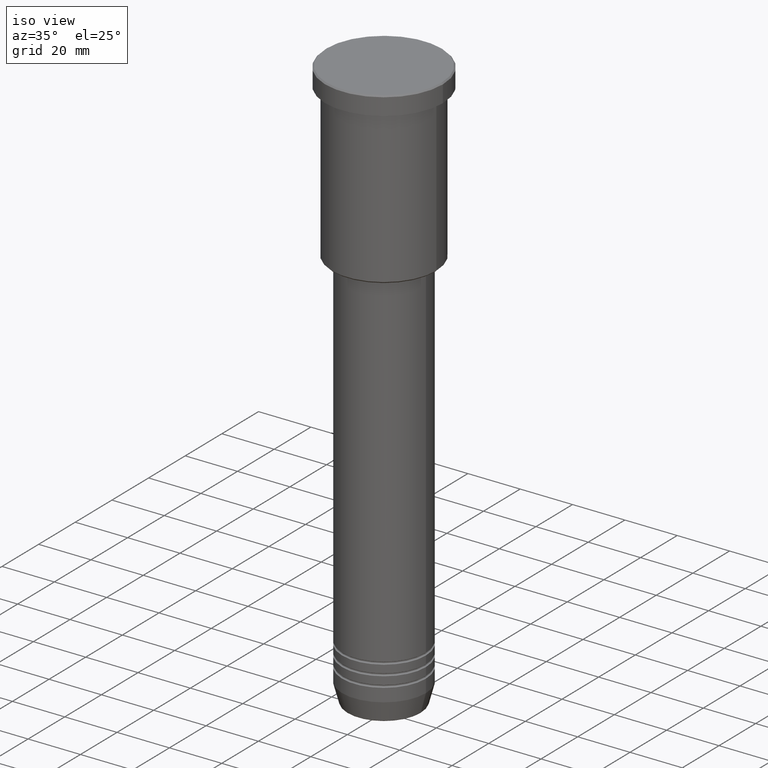
[diagram: clean part render]
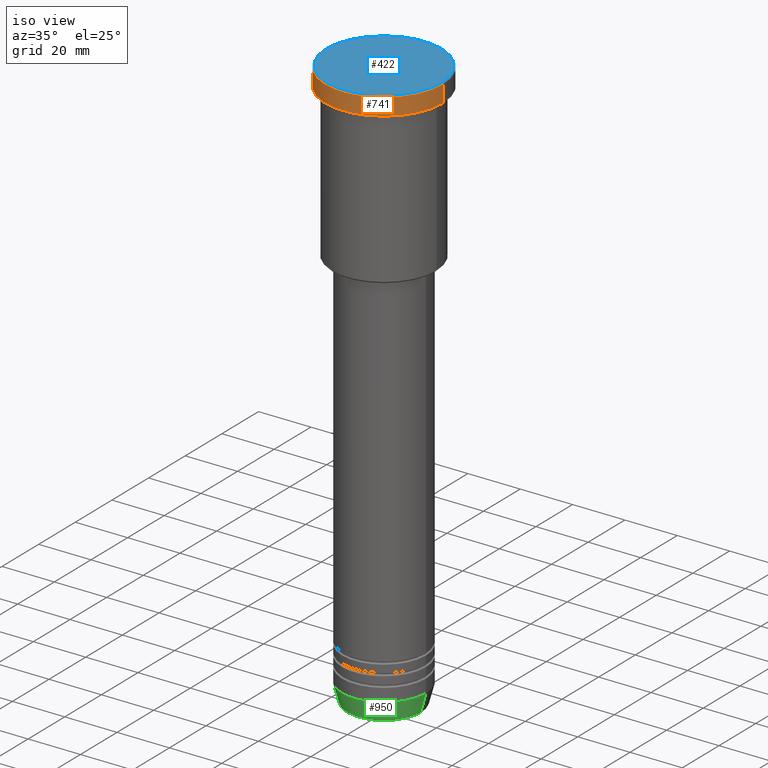
[diagram: same view with three faces highlighted in distinct colors, each labeled with its STEP entity id]
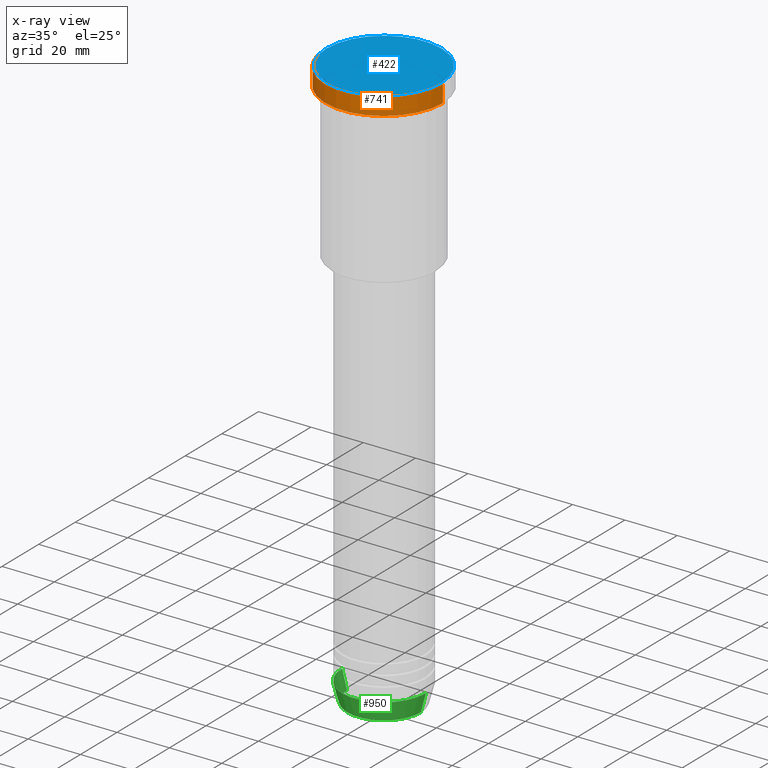
[diagram: x-ray of the same camera — body ghosted, the three highlighted faces saturated]
A machine part, iso view with three faces highlighted in distinct colors.
The next image is the same camera in x-ray (body ghosted, the three faces saturated) — at least one of them is partly hidden behind the body in this view.
Their STEP definitions:

[orange] entity #741 — the highlighted cylindrical surface (partial cylindrical patch) has radius 22.5 mm, axis along (-0, -0, 1).
#32 = VECTOR ( 'NONE', #1113, 1000.000000000000000 ) ;
#57 = CARTESIAN_POINT ( 'NONE',  ( -22.50000000000000000, 2.755455298081544778E-15, -6.999999999999995559 ) ) ;
#110 = AXIS2_PLACEMENT_3D ( 'NONE', #300, #193, #678 ) ;
#150 = EDGE_CURVE ( 'NONE', #1011, #348, #398, .T. ) ;
#152 = CARTESIAN_POINT ( 'NONE',  ( 0.000000000000000000, 0.000000000000000000, -0.5000000000000213163 ) ) ;
#193 = DIRECTION ( 'NONE',  ( -0.000000000000000000, -0.000000000000000000, 1.000000000000000000 ) ) ;
#251 = ORIENTED_EDGE ( 'NONE', *, *, #547, .T. ) ;
#258 = FACE_OUTER_BOUND ( 'NONE', #912, .T. ) ;
#261 = CARTESIAN_POINT ( 'NONE',  ( -22.50000000000000000, 2.755455298081544778E-15, -0.5000000000000213163 ) ) ;
#283 = ORIENTED_EDGE ( 'NONE', *, *, #1158, .T. ) ;
#300 = CARTESIAN_POINT ( 'NONE',  ( 0.000000000000000000, 0.000000000000000000, -6.999999999999995559 ) ) ;
#318 = AXIS2_PLACEMENT_3D ( 'NONE', #152, #424, #527 ) ;
#324 = VERTEX_POINT ( 'NONE', #261 ) ;
#340 = CIRCLE ( 'NONE', #110, 22.50000000000000000 ) ;
#348 = VERTEX_POINT ( 'NONE', #1076 ) ;
#398 = LINE ( 'NONE', #1040, #32 ) ;
#424 = DIRECTION ( 'NONE',  ( 0.000000000000000000, 0.000000000000000000, -1.000000000000000000 ) ) ;
#454 = CYLINDRICAL_SURFACE ( 'NONE', #979, 22.50000000000000000 ) ;
#462 = DIRECTION ( 'NONE',  ( -0.000000000000000000, -0.000000000000000000, 1.000000000000000000 ) ) ;
#471 = ORIENTED_EDGE ( 'NONE', *, *, #150, .T. ) ;
#503 = CARTESIAN_POINT ( 'NONE',  ( 22.50000000000000000, 0.000000000000000000, -6.999999999999995559 ) ) ;
#527 = DIRECTION ( 'NONE',  ( 1.000000000000000000, 0.000000000000000000, 0.000000000000000000 ) ) ;
#531 = DIRECTION ( 'NONE',  ( 1.000000000000000000, 0.000000000000000000, 0.000000000000000000 ) ) ;
#547 = EDGE_CURVE ( 'NONE', #1114, #1011, #340, .T. ) ;
#570 = DIRECTION ( 'NONE',  ( -0.000000000000000000, -0.000000000000000000, 1.000000000000000000 ) ) ;
#611 = VECTOR ( 'NONE', #570, 1000.000000000000000 ) ;
#678 = DIRECTION ( 'NONE',  ( 1.000000000000000000, 0.000000000000000000, 0.000000000000000000 ) ) ;
#741 = ADVANCED_FACE ( 'NONE', ( #258 ), #454, .T. ) ;
#743 = CARTESIAN_POINT ( 'NONE',  ( -22.50000000000000000, 2.755455298081544778E-15, 0.000000000000000000 ) ) ;
#838 = CIRCLE ( 'NONE', #318, 22.50000000000000000 ) ;
#867 = LINE ( 'NONE', #743, #611 ) ;
#912 = EDGE_LOOP ( 'NONE', ( #1130, #251, #471, #283 ) ) ;
#973 = EDGE_CURVE ( 'NONE', #1114, #324, #867, .T. ) ;
#979 = AXIS2_PLACEMENT_3D ( 'NONE', #995, #462, #531 ) ;
#995 = CARTESIAN_POINT ( 'NONE',  ( 0.000000000000000000, 0.000000000000000000, 0.000000000000000000 ) ) ;
#1011 = VERTEX_POINT ( 'NONE', #503 ) ;
#1040 = CARTESIAN_POINT ( 'NONE',  ( 22.50000000000000000, 0.000000000000000000, 0.000000000000000000 ) ) ;
#1076 = CARTESIAN_POINT ( 'NONE',  ( 22.50000000000000000, 0.000000000000000000, -0.5000000000000213163 ) ) ;
#1113 = DIRECTION ( 'NONE',  ( -0.000000000000000000, -0.000000000000000000, 1.000000000000000000 ) ) ;
#1114 = VERTEX_POINT ( 'NONE', #57 ) ;
#1130 = ORIENTED_EDGE ( 'NONE', *, *, #973, .F. ) ;
#1158 = EDGE_CURVE ( 'NONE', #348, #324, #838, .T. ) ;

[blue] entity #422 — the highlighted planar face has unit normal (0, -0, 1).
#9 = VERTEX_POINT ( 'NONE', #171 ) ;
#23 = EDGE_LOOP ( 'NONE', ( #255, #186 ) ) ;
#25 = EDGE_CURVE ( 'NONE', #9, #763, #836, .T. ) ;
#62 = CARTESIAN_POINT ( 'NONE',  ( -21.99999999999996447, 0.000000000000000000, 0.000000000000000000 ) ) ;
#89 = CARTESIAN_POINT ( 'NONE',  ( 0.000000000000000000, 0.000000000000000000, 0.000000000000000000 ) ) ;
#145 = DIRECTION ( 'NONE',  ( 1.000000000000000000, 0.000000000000000000, 0.000000000000000000 ) ) ;
#171 = CARTESIAN_POINT ( 'NONE',  ( 21.99999999999996447, 2.724839128102858624E-15, 0.000000000000000000 ) ) ;
#186 = ORIENTED_EDGE ( 'NONE', *, *, #25, .T. ) ;
#200 = AXIS2_PLACEMENT_3D ( 'NONE', #268, #440, #738 ) ;
#255 = ORIENTED_EDGE ( 'NONE', *, *, #1068, .T. ) ;
#268 = CARTESIAN_POINT ( 'NONE',  ( 0.000000000000000000, 0.000000000000000000, 0.000000000000000000 ) ) ;
#279 = PLANE ( 'NONE',  #200 ) ;
#325 = DIRECTION ( 'NONE',  ( -0.000000000000000000, -0.000000000000000000, 1.000000000000000000 ) ) ;
#380 = AXIS2_PLACEMENT_3D ( 'NONE', #434, #325, #145 ) ;
#422 = ADVANCED_FACE ( 'NONE', ( #1083 ), #279, .T. ) ;
#434 = CARTESIAN_POINT ( 'NONE',  ( 0.000000000000000000, 0.000000000000000000, 0.000000000000000000 ) ) ;
#440 = DIRECTION ( 'NONE',  ( 0.000000000000000000, -0.000000000000000000, 1.000000000000000000 ) ) ;
#516 = CIRCLE ( 'NONE', #380, 21.99999999999996447 ) ;
#733 = DIRECTION ( 'NONE',  ( 1.000000000000000000, 0.000000000000000000, 0.000000000000000000 ) ) ;
#738 = DIRECTION ( 'NONE',  ( 1.000000000000000000, 0.000000000000000000, 0.000000000000000000 ) ) ;
#763 = VERTEX_POINT ( 'NONE', #62 ) ;
#836 = CIRCLE ( 'NONE', #1026, 21.99999999999996447 ) ;
#1026 = AXIS2_PLACEMENT_3D ( 'NONE', #89, #1182, #733 ) ;
#1068 = EDGE_CURVE ( 'NONE', #763, #9, #516, .T. ) ;
#1083 = FACE_OUTER_BOUND ( 'NONE', #23, .T. ) ;
#1182 = DIRECTION ( 'NONE',  ( -0.000000000000000000, -0.000000000000000000, 1.000000000000000000 ) ) ;

[green] entity #950 — the highlighted conical surface has half-angle 15 deg.
#27 = CARTESIAN_POINT ( 'NONE',  ( 0.000000000000000000, 0.000000000000000000, -212.5000000000000000 ) ) ;
#48 = LINE ( 'NONE', #326, #615 ) ;
#99 = FACE_OUTER_BOUND ( 'NONE', #1099, .T. ) ;
#122 = ORIENTED_EDGE ( 'NONE', *, *, #649, .T. ) ;
#126 = CARTESIAN_POINT ( 'NONE',  ( 0.000000000000000000, 0.000000000000000000, -219.6294095225512137 ) ) ;
#132 = DIRECTION ( 'NONE',  ( -0.000000000000000000, -0.000000000000000000, 1.000000000000000000 ) ) ;
#139 = AXIS2_PLACEMENT_3D ( 'NONE', #27, #862, #572 ) ;
#147 = EDGE_CURVE ( 'NONE', #662, #1109, #358, .T. ) ;
#154 = CARTESIAN_POINT ( 'NONE',  ( -16.00000000000000000, 1.959434878635765131E-15, -212.5000000000000000 ) ) ;
#187 = CARTESIAN_POINT ( 'NONE',  ( 0.000000000000000000, 0.000000000000000000, -212.5000000000000000 ) ) ;
#242 = EDGE_CURVE ( 'NONE', #590, #662, #978, .T. ) ;
#326 = CARTESIAN_POINT ( 'NONE',  ( 16.00000000000000000, 0.000000000000000000, -212.5000000000000000 ) ) ;
#349 = CARTESIAN_POINT ( 'NONE',  ( 16.00000000000000000, 0.000000000000000000, -212.5000000000000000 ) ) ;
#358 = CIRCLE ( 'NONE', #139, 16.00000000000000000 ) ;
#385 = VERTEX_POINT ( 'NONE', #714 ) ;
#408 = DIRECTION ( 'NONE',  ( -0.2588190451025213501, 3.169619151431772337E-17, 0.9659258262890680902 ) ) ;
#537 = VECTOR ( 'NONE', #408, 1000.000000000000000 ) ;
#568 = ORIENTED_EDGE ( 'NONE', *, *, #638, .T. ) ;
#572 = DIRECTION ( 'NONE',  ( 1.000000000000000000, 0.000000000000000000, 0.000000000000000000 ) ) ;
#590 = VERTEX_POINT ( 'NONE', #597 ) ;
#597 = CARTESIAN_POINT ( 'NONE',  ( -14.08968047592163941, 1.842461544110202058E-15, -219.6294095225512137 ) ) ;
#615 = VECTOR ( 'NONE', #957, 1000.000000000000000 ) ;
#638 = EDGE_CURVE ( 'NONE', #590, #385, #1177, .T. ) ;
#649 = EDGE_CURVE ( 'NONE', #385, #1109, #48, .T. ) ;
#662 = VERTEX_POINT ( 'NONE', #694 ) ;
#694 = CARTESIAN_POINT ( 'NONE',  ( -16.00000000000000000, 1.959434878635765131E-15, -212.5000000000000000 ) ) ;
#714 = CARTESIAN_POINT ( 'NONE',  ( 14.08968047592163941, 0.000000000000000000, -219.6294095225512137 ) ) ;
#796 = AXIS2_PLACEMENT_3D ( 'NONE', #187, #1009, #960 ) ;
#862 = DIRECTION ( 'NONE',  ( -0.000000000000000000, -0.000000000000000000, 1.000000000000000000 ) ) ;
#902 = ORIENTED_EDGE ( 'NONE', *, *, #242, .F. ) ;
#937 = AXIS2_PLACEMENT_3D ( 'NONE', #126, #132, #974 ) ;
#950 = ADVANCED_FACE ( 'NONE', ( #99 ), #987, .T. ) ;
#957 = DIRECTION ( 'NONE',  ( 0.2588190451025213501, 0.000000000000000000, 0.9659258262890680902 ) ) ;
#960 = DIRECTION ( 'NONE',  ( 1.000000000000000000, 0.000000000000000000, 0.000000000000000000 ) ) ;
#971 = ORIENTED_EDGE ( 'NONE', *, *, #147, .F. ) ;
#974 = DIRECTION ( 'NONE',  ( 1.000000000000000000, 0.000000000000000000, 0.000000000000000000 ) ) ;
#978 = LINE ( 'NONE', #154, #537 ) ;
#987 = CONICAL_SURFACE ( 'NONE', #796, 16.00000000000000000, 0.2617993877991500740 ) ;
#1009 = DIRECTION ( 'NONE',  ( -0.000000000000000000, -0.000000000000000000, 1.000000000000000000 ) ) ;
#1099 = EDGE_LOOP ( 'NONE', ( #902, #568, #122, #971 ) ) ;
#1109 = VERTEX_POINT ( 'NONE', #349 ) ;
#1177 = CIRCLE ( 'NONE', #937, 14.08968047592163941 ) ;